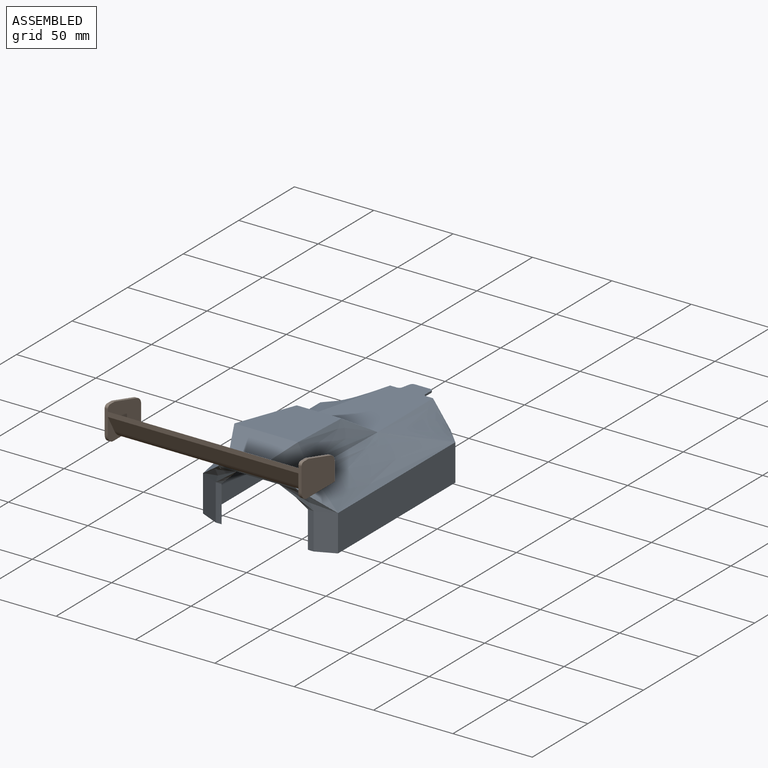
[diagram: assembled view]
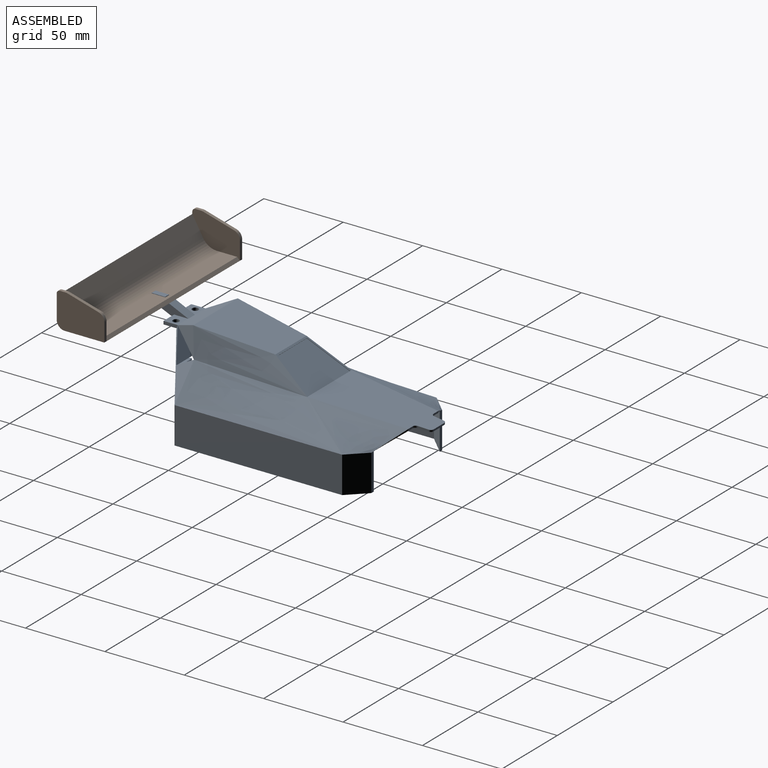
[diagram: assembled view, second angle]
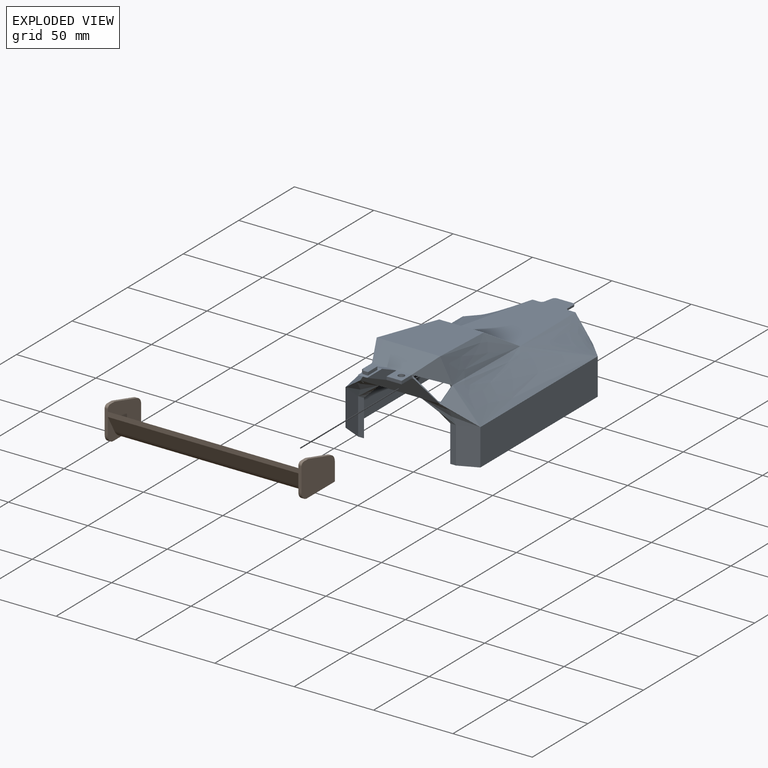
[diagram: exploded view]
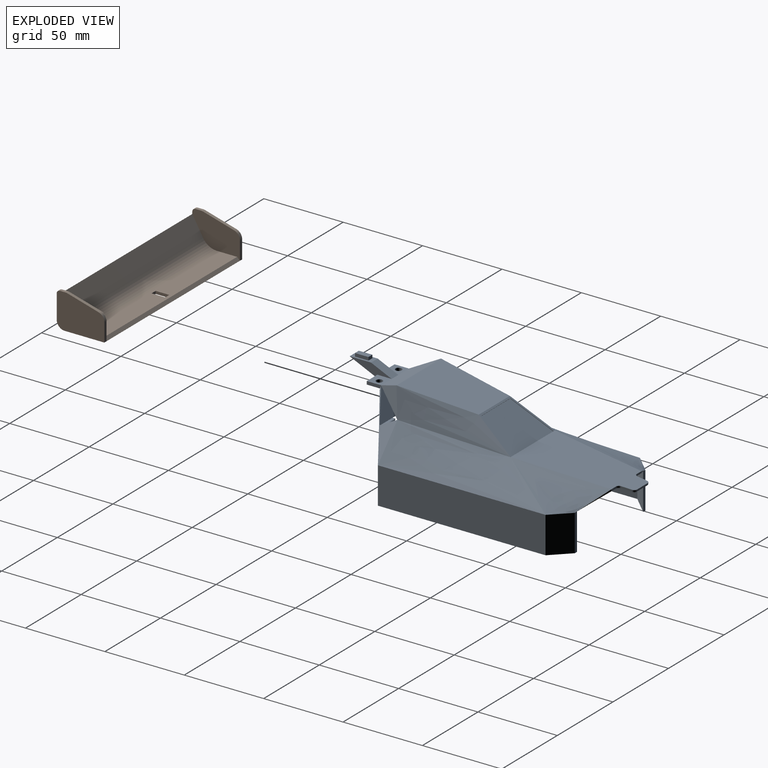
[diagram: exploded view, second angle]
ASSEMBLY  parts=2 mates=3
PART A: 148 faces, bbox 87x184.3x61.8 mm
  f0: plane 4.17x1.2mm, normal (0,1,-0.08), area 5mm2, adj f47,f50,f51,f135
  f1: plane 9x2mm, normal (1,0,0), area 18mm2, adj f26,f34,f35,f117
  f2: plane 46.94x38.06mm, normal (0,-0.13,-0.99), area 1521.3mm2, adj f3,f14,f28,f72,f74,f75,f93,f95
  f3: offset ~73.83x23.64mm, area 905.4mm2, adj f2,f7,f72,f73,f105,f106,f132,f133
  f4: plane 23x13.84mm, normal (-0.41,0.91,0), area 348.8mm2, adj f39,f40,f45,f112,f119,f127,f132
  f5: bspline ~104.98x21mm, area 2093.3mm2, adj f40,f46,f73,f122,f132
  f6: bspline ~17.93x5mm, area 0.2mm2, adj f7,f105,f133
  f7: bspline ~17x5.93mm, area 1.3mm2, adj f3,f6,f105,f133
  f8: plane 2.33x1.79mm, normal (0.91,-0.38,-0.17), area 1.7mm2, adj f27,f28,f105,f120
  f9: bspline ~27.5x13mm, area 1mm2, adj f16,f30,f31,f78,f97,f103
  f10: plane 0.01x0mm, normal (0,0,-1), area 0mm2, adj f21,f91,f98
  f11: plane 1.91x1.82mm, normal (0,0,1), area 2.2mm2, adj f16,f18,f30,f103
  f12: bspline ~17x5.93mm, area 1.3mm2, adj f14,f15,f94,f103
  f13: bspline ~1.73x0.92mm, area 0.3mm2, adj f54,f77,f102
  f14: offset ~73.83x23.64mm, area 905.4mm2, adj f2,f12,f75,f76,f94,f95,f102,f103
  f15: bspline ~17.93x5mm, area 0.2mm2, adj f12,f94,f103
  f16: bspline ~27.5x13mm, area 0.1mm2, adj f9,f11,f103
  f17: bspline ~29x13mm, area 157.9mm2, adj f21,f52,f79,f98,f100,f104
  f18: plane 16x12.5mm, normal (0,0.9,0.44), area 27.1mm2, adj f11,f27,f32,f92,f103
  f19: plane 0.35x0.18mm, normal (-0.69,-0.32,0.64), area 0mm2, adj f21,f92,f101
  f20: plane 2x1.28mm, normal (0,-1,0), area 1.3mm2, adj f21,f24,f92
  f21: plane 50.03x14mm, normal (0,-0.88,-0.47), area 616.6mm2, adj f10,f17,f19,f20,f26,f80,f91,f92
  f22: plane 9.5x2mm, normal (0,-1,0), area 19mm2, adj f23,f24,f26,f85
  f23: plane 9.5x9mm, normal (0,0,1), area 72.9mm2, adj f22,f24,f25,f37,f85
  f24: plane 9x2mm, normal (-1,0,0), area 18mm2, adj f20,f22,f23,f26
  f25: cylinder r=2mm len=4mm, axis (0,0,-1), area 25.1mm2, adj f23,f26
  f26: plane 25x9mm, normal (0,0,-1), area 199.9mm2, adj f1,f21,f22,f24,f25,f33,f34,f83
  f27: plane 45.81x14.4mm, normal (0,0.9,0.44), area 568.2mm2, adj f8,f18,f28,f29,f32,f36,f80,f115
  f28: plane 36.61x14.67mm, normal (0,0.42,-0.91), area 477.2mm2, adj f2,f8,f27,f29,f93,f94,f105,f107
  f29: plane 2.33x1.79mm, normal (-0.91,-0.38,-0.17), area 1.7mm2, adj f27,f28,f32,f94
  f30: plane 1.82x1.76mm, normal (0,0,1), area 2.1mm2, adj f9,f11,f36
  f31: bspline ~27.5x13mm, area 155.8mm2, adj f9,f36,f54,f78,f79,f97
  f32: plane 1.76x0.87mm, normal (0,0.9,0.44), area 0.4mm2, adj f18,f27,f29
  f33: cylinder r=2mm len=4mm, axis (0,0,-1), area 25.1mm2, adj f26,f35
  f34: plane 9.5x2mm, normal (0,-1,0), area 19mm2, adj f1,f26,f35,f84
  f35: plane 9.5x9mm, normal (0,0,1), area 72.9mm2, adj f1,f33,f34,f37,f84
  f36: plane 9.41x1.82mm, normal (0,0,1), area 15.5mm2, adj f27,f30,f31,f79
  f37: plane 40x15mm, normal (0,-0.42,0.91), area 535.7mm2, adj f23,f35,f66,f81,f96,f108
  f38: plane 23x11.67mm, normal (0.41,-0.91,0), area 294.3mm2, adj f39,f44,f45,f114
  f39: plane 23x3.67mm, normal (0,-1,0), area 84.3mm2, adj f4,f38,f45,f124
  f40: plane 104.01x23mm, normal (-1,0,0), area 2392.3mm2, adj f4,f5,f41,f45
  f41: plane 23x11.53mm, normal (-0.71,-0.7,0), area 371.3mm2, adj f40,f42,f45,f46
  f42: plane 23x2.1mm, normal (0,1,0), area 48.3mm2, adj f41,f43,f45,f47
  f43: plane 23x10.92mm, normal (0.71,0.7,0), area 351.6mm2, adj f42,f44,f45,f48
  f44: plane 105.6x23mm, normal (1,0,0), area 2428.7mm2, adj f38,f43,f45,f64
  f45: plane 121.75x15.34mm, normal (0,0,-1), area 201.8mm2, adj f4,f38,f39,f40,f41,f42,f43,f44
  f46: bspline ~59.08x27.5mm, area 861.3mm2, adj f5,f41,f47,f51
  f47: bspline ~18.3x10.35mm, area 24.2mm2, adj f0,f42,f46,f48
  f48: bspline ~59.08x29mm, area 927.9mm2, adj f43,f47,f50,f64
  f49: plane 4.17x1.2mm, normal (0,1,-0.08), area 5mm2, adj f50,f51,f62,f141
  f50: plane 69.05x40mm, normal (0,0.08,1), area 2127.5mm2, adj f0,f48,f49,f63,f71,f135,f136,f137
  f51: plane 69.05x40mm, normal (0,-0.08,-1), area 2127.5mm2, adj f0,f46,f49,f61,f70,f135,f136,f137
  f52: plane 23x11.67mm, normal (-0.41,-0.91,0), area 294.3mm2, adj f17,f53,f59,f60
  f53: plane 23x3.67mm, normal (0,-1,0), area 84.3mm2, adj f52,f54,f60,f79
  f54: plane 23x13.84mm, normal (0.41,0.91,0), area 348.8mm2, adj f13,f31,f53,f55,f60,f97,f102
  f55: plane 104.01x23mm, normal (1,0,0), area 2392.3mm2, adj f54,f56,f60,f67
  f56: plane 23x11.53mm, normal (0.71,-0.7,0), area 371.3mm2, adj f55,f57,f60,f61
  f57: plane 23x2.1mm, normal (0,1,0), area 48.3mm2, adj f56,f58,f60,f62
  f58: plane 23x10.92mm, normal (-0.71,0.7,0), area 351.6mm2, adj f57,f59,f60,f63
  f59: plane 105.6x23mm, normal (-1,0,0), area 2428.7mm2, adj f52,f58,f60,f68
  f60: plane 121.75x15.34mm, normal (0,0,-1), area 201.8mm2, adj f52,f53,f54,f55,f56,f57,f58,f59
  f61: bspline ~59.08x27.5mm, area 861.3mm2, adj f51,f56,f62,f67
  f62: bspline ~18.3x10.35mm, area 24.2mm2, adj f49,f57,f61,f63
  f63: bspline ~59.08x29mm, area 927.9mm2, adj f50,f58,f62,f68
  f64: bspline ~105.6x22.5mm, area 2277.1mm2, adj f44,f48,f65,f129
  f65: bspline ~71.77x21.68mm, area 944.3mm2, adj f64,f66,f71,f108
  f66: plane 47.58x40mm, normal (0,0.13,0.99), area 1631.6mm2, adj f37,f65,f69,f71
  f67: bspline ~104.98x21mm, area 2093.3mm2, adj f55,f61,f76,f77,f102
  f68: bspline ~105.6x22.5mm, area 2277.1mm2, adj f59,f63,f69,f99
  f69: bspline ~71.77x21.68mm, area 944.3mm2, adj f66,f68,f71,f96
  f70: plane 40x24.26mm, normal (0,-0.54,-0.84), area 976.4mm2, adj f51,f72,f74,f75
  f71: plane 40x24.19mm, normal (0,0.54,0.84), area 105.4mm2, adj f50,f65,f66,f69,f142,f143,f145,f146
  f72: bspline ~24.43x15.87mm, area 29.3mm2, adj f2,f3,f70,f73,f74
  f73: bspline ~67.49x5.84mm, area 67.6mm2, adj f3,f5,f72,f132
  f74: plane 28x0.6mm, normal (0,0.99,-0.13), area 16.5mm2, adj f2,f70,f72,f75
  f75: bspline ~24.43x15.87mm, area 29.3mm2, adj f2,f14,f70,f74,f76
  f76: bspline ~67.49x5.84mm, area 67.6mm2, adj f14,f67,f75,f102
  f77: plane 0.86x0.7mm, normal (-0.63,0,0.78), area 0.3mm2, adj f13,f67,f102
  f78: bspline ~27.5x13mm, area 0.1mm2, adj f9,f31,f97
  f79: bspline ~17.33x13mm, area 42.2mm2, adj f17,f31,f36,f53,f80
  f80: plane 27x0.43mm, normal (0,0,-1), area 11.7mm2, adj f21,f27,f79,f124
  f81: plane 13x6mm, normal (0,0.41,0.91), area 85.5mm2, adj f37,f82,f84,f85
  f82: plane 13.45x6mm, normal (0,0,1), area 51mm2, adj f81,f83,f84,f85,f86,f87,f88,f89
  f83: plane 17.45x7.84mm, normal (0,-0.41,-0.91), area 114.8mm2, adj f26,f82,f84,f85
  f84: plane 26.45x7.84mm, normal (1,0,0), area 83mm2, adj f34,f35,f81,f82,f83
  f85: plane 26.45x7.84mm, normal (-1,0,0), area 83mm2, adj f22,f23,f81,f82,f83
  f86: plane 3.5x2mm, normal (0,1,0), area 7mm2, adj f82,f87,f89,f90
  f87: plane 8.5x2mm, normal (-1,0,0), area 17mm2, adj f82,f86,f88,f90
  f88: plane 3.5x2mm, normal (0,-1,0), area 7mm2, adj f82,f87,f89,f90
  f89: plane 8.5x2mm, normal (1,0,0), area 17mm2, adj f82,f86,f88,f90
  f90: plane 8.5x3.5mm, normal (0,0,1), area 29.7mm2, adj f86,f87,f88,f89
  f91: plane 0.01x0.01mm, normal (-0.69,-0.32,0.64), area 0mm2, adj f10,f21,f99
  f92: extruded ~16.21x12.5mm, area 13.4mm2, adj f18,f19,f20,f21
  f93: plane 17.48x15.02mm, normal (0.86,0.49,-0.14), area 136.7mm2, adj f2,f28,f94,f95
  f94: plane 19.98x13.23mm, normal (0.09,-0.41,-0.91), area 44.2mm2, adj f12,f14,f15,f28,f29,f93,f95,f96
  f95: plane 15.06x4.86mm, normal (-0.43,0.84,0.33), area 3.7mm2, adj f2,f14,f93,f94
  f96: plane 18.98x16.68mm, normal (-0.86,-0.49,0.14), area 161.5mm2, adj f37,f69,f94
  f97: plane 18.16x16.59mm, normal (0.69,0.34,-0.63), area 126.6mm2, adj f9,f31,f54,f78,f102,f103
  f98: plane 18.85x13.01mm, normal (-0.1,-0.81,-0.58), area 10.9mm2, adj f10,f17,f99,f100,f104
  f99: plane 19.16x17.5mm, normal (-0.69,-0.34,0.63), area 158.6mm2, adj f68,f91,f98,f101,f103
  f100: plane 1.38x1.3mm, normal (0.74,-0.32,0.6), area 0.2mm2, adj f17,f98,f104
  f101: plane 0.35x0.18mm, normal (0.74,-0.32,0.6), area 0mm2, adj f19,f99
  f102: plane 18.38x17.37mm, normal (-0.23,0.95,0.21), area 22.8mm2, adj f13,f14,f54,f67,f76,f77,f97,f103
  f103: plane 11.79x6.5mm, normal (0.74,-0.32,0.6), area 22.7mm2, adj f9,f11,f12,f14,f15,f16,f18,f97
  f104: plane 3.02x2.34mm, normal (0.69,0.34,-0.63), area 0.4mm2, adj f17,f98,f100
  f105: plane 19.98x13.23mm, normal (-0.09,-0.41,-0.91), area 44.2mm2, adj f3,f6,f7,f8,f28,f106,f107,f108
  f106: plane 15.06x4.86mm, normal (0.43,0.84,0.33), area 3.7mm2, adj f2,f3,f105,f107
  f107: plane 17.48x15.02mm, normal (-0.86,0.49,-0.14), area 136.7mm2, adj f2,f28,f105,f106
  f108: plane 18.98x16.68mm, normal (0.86,-0.49,0.14), area 161.5mm2, adj f37,f65,f105
  f109: bspline ~27.5x13mm, area 1mm2, adj f113,f118,f119,f123,f127,f133
  f110: plane 0.01x0mm, normal (0,0,-1), area 0mm2, adj f21,f125,f128
  f111: plane 1.91x1.82mm, normal (0,0,1), area 2.2mm2, adj f113,f115,f118,f133
  f112: bspline ~1.73x0.92mm, area 0.3mm2, adj f4,f122,f132
  f113: bspline ~27.5x13mm, area 0.1mm2, adj f109,f111,f133
  f114: bspline ~29x13mm, area 157.9mm2, adj f21,f38,f124,f128,f130,f134
  f115: plane 16x12.5mm, normal (0,0.9,0.44), area 27.1mm2, adj f27,f111,f120,f126,f133
  f116: plane 0.35x0.18mm, normal (0.69,-0.32,0.64), area 0mm2, adj f21,f126,f131
  f117: plane 2x1.28mm, normal (0,-1,0), area 1.3mm2, adj f1,f21,f126
  f118: plane 1.82x1.76mm, normal (0,0,1), area 2.1mm2, adj f109,f111,f121
  f119: bspline ~27.5x13mm, area 155.8mm2, adj f4,f109,f121,f123,f124,f127
  f120: plane 1.76x0.87mm, normal (0,0.9,0.44), area 0.4mm2, adj f8,f27,f115
  f121: plane 9.41x1.82mm, normal (0,0,1), area 15.5mm2, adj f27,f118,f119,f124
  f122: plane 0.86x0.7mm, normal (0.63,0,0.78), area 0.3mm2, adj f5,f112,f132
  f123: bspline ~27.5x13mm, area 0.1mm2, adj f109,f119,f127
  f124: bspline ~17.33x13mm, area 42.2mm2, adj f39,f80,f114,f119,f121
  f125: plane 0.01x0.01mm, normal (0.69,-0.32,0.64), area 0mm2, adj f21,f110,f129
  f126: extruded ~16.21x12.5mm, area 13.4mm2, adj f21,f115,f116,f117
  f127: plane 18.16x16.59mm, normal (-0.69,0.34,-0.63), area 126.6mm2, adj f4,f109,f119,f123,f132,f133
  f128: plane 18.85x13.01mm, normal (0.1,-0.81,-0.58), area 10.9mm2, adj f110,f114,f129,f130,f134
  f129: plane 19.16x17.5mm, normal (0.69,-0.34,0.63), area 158.6mm2, adj f64,f125,f128,f131,f133
  f130: plane 1.38x1.3mm, normal (-0.74,-0.32,0.6), area 0.2mm2, adj f114,f128,f134
  f131: plane 0.35x0.18mm, normal (-0.74,-0.32,0.6), area 0mm2, adj f116,f129
  f132: plane 18.38x17.37mm, normal (0.23,0.95,0.21), area 22.8mm2, adj f3,f4,f5,f73,f112,f122,f127,f133
  f133: plane 11.79x6.5mm, normal (-0.74,-0.32,0.6), area 22.7mm2, adj f3,f6,f7,f109,f111,f113,f115,f127
  f134: plane 3.02x2.34mm, normal (-0.69,0.34,-0.63), area 0.4mm2, adj f114,f128,f130
  f135: cylinder r=2mm len=1.99mm, axis (0,0.08,1), area 3.6mm2, adj f0,f50,f51,f136
  f136: plane 6.43x1.73mm, normal (1,0.09,-0.01), area 7.6mm2, adj f50,f51,f135,f137
  f137: cylinder r=2mm len=1.99mm, axis (0,0.08,1), area 3.6mm2, adj f50,f51,f136,f138
  f138: plane 9.59x1.2mm, normal (0,1,-0.08), area 11.5mm2, adj f50,f51,f137,f139
  f139: cylinder r=2mm len=1.99mm, axis (0,0.08,1), area 3.6mm2, adj f50,f51,f138,f140
  f140: plane 6.43x1.73mm, normal (-1,0.09,-0.01), area 7.6mm2, adj f50,f51,f139,f141
  f141: cylinder r=2mm len=1.99mm, axis (0,0.08,1), area 3.6mm2, adj f49,f50,f51,f140
  f142: plane 22.22x14.29mm, normal (-0.98,0.17,-0.11), area 6.7mm2, adj f71,f143,f146,f147
  f143: plane 1.19x0.88mm, normal (-0.98,0.17,-0.11), area 0.3mm2, adj f71,f142,f144,f147
  f144: plane 37.45x0.21mm, normal (0,-0.84,0.54), area 9.4mm2, adj f50,f143,f145,f147
  f145: plane 23.27x14.96mm, normal (0.98,0.17,-0.11), area 7mm2, adj f71,f144,f146,f147
  f146: plane 25.97x0.21mm, normal (0,0.84,-0.54), area 6.5mm2, adj f71,f142,f145,f147
  f147: plane 37.45x23.14mm, normal (0,0.54,0.84), area 870mm2, adj f142,f143,f144,f145,f146
PART B: 32 faces, bbox 124x30x22 mm
  f0: plane 120x1.75mm, normal (0,-0.71,0.71), area 297mm2, adj f1,f7,f17,f27
  f1: plane 124x25mm, normal (0,0,-1), area 1896.2mm2, adj f0,f2,f8,f9,f15,f16,f18,f19
  f2: cylinder r=10mm len=120mm, axis (-1,0,0), area 1256.6mm2, adj f1,f3,f8,f18
  f3: plane 120x10.59mm, normal (0,0.87,-0.5), area 1467.2mm2, adj f2,f4,f8,f18
  f4: plane 124x15mm, normal (0,1,0), area 420mm2, adj f3,f5,f8,f9,f10,f16,f17,f18
  f5: plane 120x11.84mm, normal (0,-0.87,0.5), area 1640.4mm2, adj f4,f6,f17,f27
  f6: cylinder r=10mm len=120mm, axis (-1,0,0), area 1256.6mm2, adj f5,f7,f17,f27
  f7: plane 120x12.76mm, normal (0,0,1), area 1499.6mm2, adj f0,f6,f17,f27,f28,f29,f30,f31
  f8: plane 15.59x14.77mm, normal (-1,0,0), area 70.2mm2, adj f1,f2,f3,f4,f9
  f9: cylinder r=5mm len=5mm, axis (-1,0,0), area 15.7mm2, adj f1,f4,f8,f16
  f10: cylinder r=2mm len=2mm, axis (-1,0,0), area 6.3mm2, adj f4,f11,f16,f17
  f11: plane 3.42x2mm, normal (0,0,1), area 6.8mm2, adj f10,f12,f16,f17
  f12: cylinder r=5mm len=2mm, axis (-1,0,0), area 2.7mm2, adj f11,f13,f16,f17
  f13: plane 19.58x5.5mm, normal (0,-0.27,0.96), area 40.7mm2, adj f12,f14,f16,f17
  f14: cylinder r=5mm len=4.81mm, axis (-1,0,0), area 13mm2, adj f13,f15,f16,f17
  f15: plane 11.5x2mm, normal (0,-1,0), area 23mm2, adj f1,f14,f16,f17
  f16: plane 30x22mm, normal (1,0,0), area 570.9mm2, adj f1,f4,f9,f10,f11,f12,f13,f14
  f17: plane 30x22mm, normal (-1,0,0), area 438mm2, adj f0,f4,f5,f6,f7,f10,f11,f12
  f18: plane 15.59x14.77mm, normal (1,0,0), area 70.2mm2, adj f1,f2,f3,f4,f19
  f19: cylinder r=5mm len=5mm, axis (1,0,0), area 15.7mm2, adj f1,f4,f18,f26
  f20: cylinder r=2mm len=2mm, axis (1,0,0), area 6.3mm2, adj f4,f21,f26,f27
  f21: plane 3.42x2mm, normal (0,0,1), area 6.8mm2, adj f20,f22,f26,f27
  f22: cylinder r=5mm len=2mm, axis (1,0,0), area 2.7mm2, adj f21,f23,f26,f27
  f23: plane 19.58x5.5mm, normal (0,-0.27,0.96), area 40.7mm2, adj f22,f24,f26,f27
  f24: cylinder r=5mm len=4.81mm, axis (1,0,0), area 13mm2, adj f23,f25,f26,f27
  f25: plane 11.5x2mm, normal (0,-1,0), area 23mm2, adj f1,f24,f26,f27
  f26: plane 30x22mm, normal (-1,0,0), area 570.9mm2, adj f1,f4,f19,f20,f21,f22,f23,f24
  f27: plane 30x22mm, normal (1,0,0), area 438mm2, adj f0,f4,f5,f6,f7,f20,f21,f22
  f28: plane 8.6x1.75mm, normal (-1,0,0), area 15.1mm2, adj f1,f7,f29,f31
  f29: plane 3.6x1.75mm, normal (0,-1,0), area 6.3mm2, adj f1,f7,f28,f30
  f30: plane 8.6x1.75mm, normal (1,0,0), area 15.1mm2, adj f1,f7,f29,f31
  f31: plane 3.6x1.75mm, normal (0,1,0), area 6.3mm2, adj f1,f7,f28,f30
PLACE A rot(axis=(0,0,1),0deg) t=(-112.71,-22.04,33.4)mm
PLACE B rot(axis=(0,0,-1),180deg) t=(-112.76,-40.92,91.24)mm
MATE planar B.f1 <-> A.f82  axis (0,0,-1) through (-114.56,-48.97,91.24)mm
MATE planar B.f30 <-> A.f89  axis (-1,0,0) through (-110.96,-48.97,92.11)mm
MATE planar A.f88 <-> B.f29  axis (0,-1,0) through (-114.46,-53.27,93.24)mm
